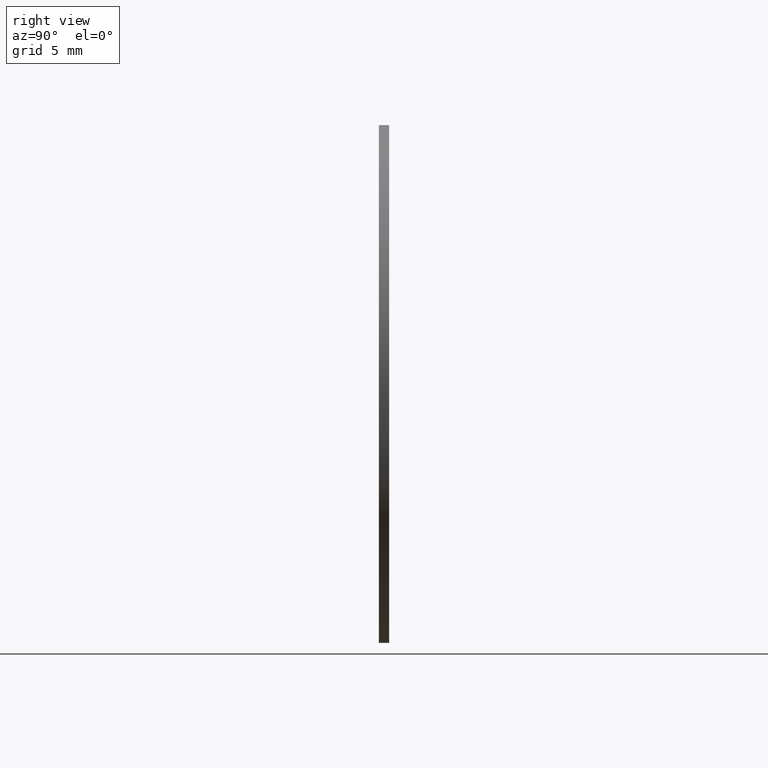
[diagram: clean part render]
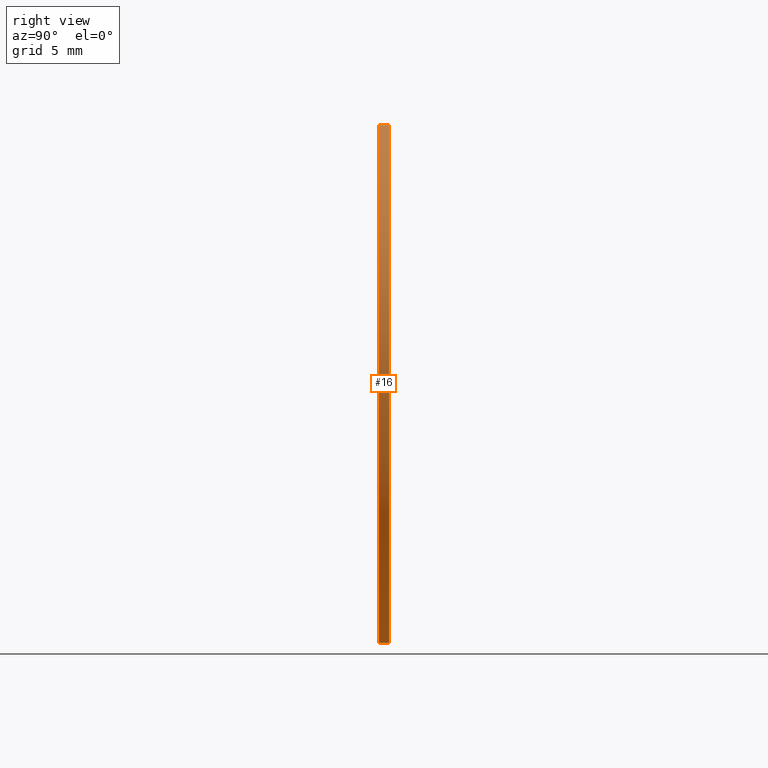
[diagram: same view with one face highlighted and labeled with its STEP entity id]
A machine part, right view. The second image highlights one B-rep face of the part: STEP entity #16.
In plain terms, the highlighted cylindrical surface (partial cylindrical patch) has radius 12.5 mm, axis along (-0, -1, -0).
Its self-contained STEP definition (entity closure, byte-faithful):
#14 = CARTESIAN_POINT ( 'NONE',  ( 1.530808498934191521E-15, 0.2500000000000000000, 12.50000000000000000 ) ) ;
#16 = ADVANCED_FACE ( 'NONE', ( #95 ), #47, .T. ) ;
#21 = AXIS2_PLACEMENT_3D ( 'NONE', #32, #105, #71 ) ;
#22 = LINE ( 'NONE', #178, #119 ) ;
#27 = ORIENTED_EDGE ( 'NONE', *, *, #110, .F. ) ;
#28 = EDGE_CURVE ( 'NONE', #212, #211, #150, .T. ) ;
#29 = VERTEX_POINT ( 'NONE', #171 ) ;
#30 = DIRECTION ( 'NONE',  ( 0.000000000000000000, 1.000000000000000000, 0.000000000000000000 ) ) ;
#32 = CARTESIAN_POINT ( 'NONE',  ( 0.000000000000000000, -0.2500000000000000000, 0.000000000000000000 ) ) ;
#47 = CYLINDRICAL_SURFACE ( 'NONE', #58, 12.50000000000000000 ) ;
#48 = DIRECTION ( 'NONE',  ( -0.000000000000000000, -1.000000000000000000, -0.000000000000000000 ) ) ;
#58 = AXIS2_PLACEMENT_3D ( 'NONE', #109, #190, #129 ) ;
#70 = CARTESIAN_POINT ( 'NONE',  ( 0.000000000000000000, 0.2500000000000000000, 0.000000000000000000 ) ) ;
#71 = DIRECTION ( 'NONE',  ( 0.000000000000000000, 0.000000000000000000, 1.000000000000000000 ) ) ;
#85 = VERTEX_POINT ( 'NONE', #14 ) ;
#87 = ORIENTED_EDGE ( 'NONE', *, *, #126, .F. ) ;
#88 = VECTOR ( 'NONE', #48, 1000.000000000000000 ) ;
#95 = FACE_OUTER_BOUND ( 'NONE', #149, .T. ) ;
#105 = DIRECTION ( 'NONE',  ( 0.000000000000000000, 1.000000000000000000, 0.000000000000000000 ) ) ;
#107 = DIRECTION ( 'NONE',  ( 0.000000000000000000, 0.000000000000000000, 1.000000000000000000 ) ) ;
#109 = CARTESIAN_POINT ( 'NONE',  ( 0.000000000000000000, 0.2500000000000000000, 0.000000000000000000 ) ) ;
#110 = EDGE_CURVE ( 'NONE', #29, #211, #130, .T. ) ;
#119 = VECTOR ( 'NONE', #236, 1000.000000000000000 ) ;
#126 = EDGE_CURVE ( 'NONE', #85, #29, #151, .T. ) ;
#129 = DIRECTION ( 'NONE',  ( 0.000000000000000000, 0.000000000000000000, -1.000000000000000000 ) ) ;
#130 = LINE ( 'NONE', #170, #88 ) ;
#135 = CARTESIAN_POINT ( 'NONE',  ( 0.000000000000000000, -0.2500000000000000000, -12.50000000000000000 ) ) ;
#149 = EDGE_LOOP ( 'NONE', ( #87, #244, #222, #27 ) ) ;
#150 = CIRCLE ( 'NONE', #21, 12.50000000000000000 ) ;
#151 = CIRCLE ( 'NONE', #243, 12.50000000000000000 ) ;
#170 = CARTESIAN_POINT ( 'NONE',  ( 0.000000000000000000, 0.2500000000000000000, -12.50000000000000000 ) ) ;
#171 = CARTESIAN_POINT ( 'NONE',  ( 0.000000000000000000, 0.2500000000000000000, -12.50000000000000000 ) ) ;
#175 = CARTESIAN_POINT ( 'NONE',  ( 1.530808498934191521E-15, -0.2500000000000000000, 12.50000000000000000 ) ) ;
#178 = CARTESIAN_POINT ( 'NONE',  ( 1.530808498934191521E-15, 0.2500000000000000000, 12.50000000000000000 ) ) ;
#186 = EDGE_CURVE ( 'NONE', #85, #212, #22, .T. ) ;
#190 = DIRECTION ( 'NONE',  ( -0.000000000000000000, -1.000000000000000000, -0.000000000000000000 ) ) ;
#211 = VERTEX_POINT ( 'NONE', #135 ) ;
#212 = VERTEX_POINT ( 'NONE', #175 ) ;
#222 = ORIENTED_EDGE ( 'NONE', *, *, #28, .T. ) ;
#236 = DIRECTION ( 'NONE',  ( -0.000000000000000000, -1.000000000000000000, -0.000000000000000000 ) ) ;
#243 = AXIS2_PLACEMENT_3D ( 'NONE', #70, #30, #107 ) ;
#244 = ORIENTED_EDGE ( 'NONE', *, *, #186, .T. ) ;